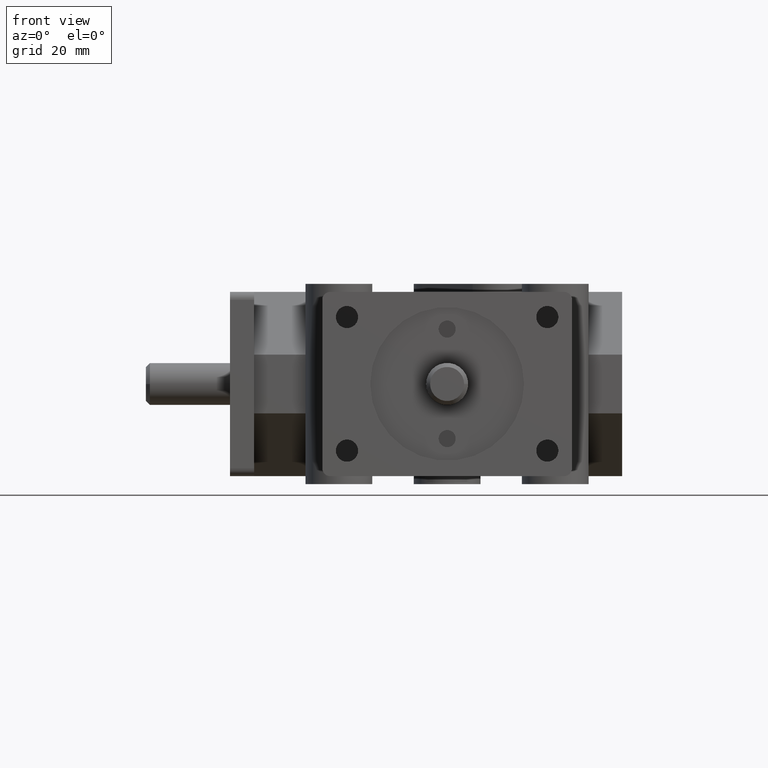
[diagram: clean part render]
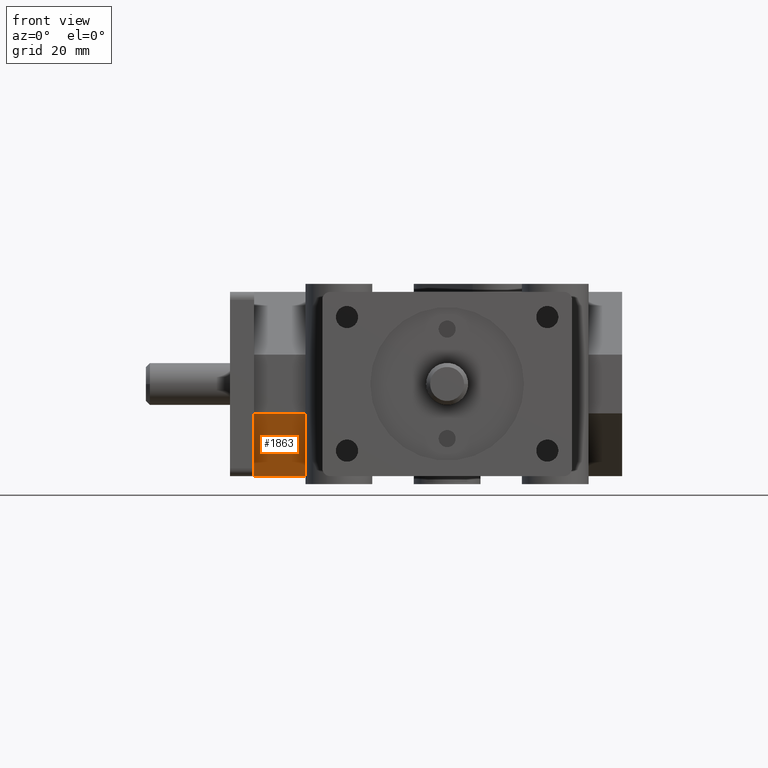
[diagram: same view with one face highlighted and labeled with its STEP entity id]
A machine part, front view. The second image highlights one B-rep face of the part: STEP entity #1863.
In plain terms, the highlighted planar face has unit normal (0, -0.7071, -0.7071).
Its self-contained STEP definition (entity closure, byte-faithful):
#96=PLANE('',#2058);
#191=FACE_OUTER_BOUND('',#322,.T.);
#322=EDGE_LOOP('',(#1598,#1599,#1600,#1601));
#491=LINE('',#2868,#664);
#584=LINE('',#3085,#757);
#589=LINE('',#3099,#762);
#593=LINE('',#3105,#766);
#664=VECTOR('',#2318,1.);
#757=VECTOR('',#2505,1.);
#762=VECTOR('',#2520,1.);
#766=VECTOR('',#2526,1.);
#869=VERTEX_POINT('',#2865);
#870=VERTEX_POINT('',#2867);
#947=VERTEX_POINT('',#3084);
#951=VERTEX_POINT('',#3098);
#1061=EDGE_CURVE('',#870,#869,#491,.T.);
#1174=EDGE_CURVE('',#947,#870,#584,.F.);
#1181=EDGE_CURVE('',#951,#947,#589,.T.);
#1185=EDGE_CURVE('',#869,#951,#593,.F.);
#1598=ORIENTED_EDGE('',*,*,#1174,.T.);
#1599=ORIENTED_EDGE('',*,*,#1061,.T.);
#1600=ORIENTED_EDGE('',*,*,#1185,.T.);
#1601=ORIENTED_EDGE('',*,*,#1181,.T.);
#1863=ADVANCED_FACE('',(#191),#96,.T.);
#2058=AXIS2_PLACEMENT_3D('',#3125,#2552,#2553);
#2318=DIRECTION('',(1.,0.,0.));
#2505=DIRECTION('',(0.,-0.707106781186547,0.707106781186548));
#2520=DIRECTION('',(-1.,0.,0.));
#2526=DIRECTION('',(0.,0.707106781186547,-0.707106781186548));
#2552=DIRECTION('center_axis',(0.,-0.707106781186548,-0.707106781186547));
#2553=DIRECTION('ref_axis',(0.,-0.707106781186547,0.707106781186548));
#2865=CARTESIAN_POINT('',(-26.924,48.4505,-17.526));
#2867=CARTESIAN_POINT('',(-36.703,48.4505,-17.526));
#2868=CARTESIAN_POINT('',(-13.462,48.4505,-17.526));
#3084=CARTESIAN_POINT('',(-36.703,36.5125,-5.588));
#3085=CARTESIAN_POINT('',(-36.703,38.1,-7.1755));
#3098=CARTESIAN_POINT('',(-26.924,36.5125,-5.588));
#3099=CARTESIAN_POINT('',(-13.462,36.5125,-5.588));
#3105=CARTESIAN_POINT('',(-26.924,37.719,-6.79450000000001));
#3125=CARTESIAN_POINT('Origin',(-13.462,42.4815,-11.557));